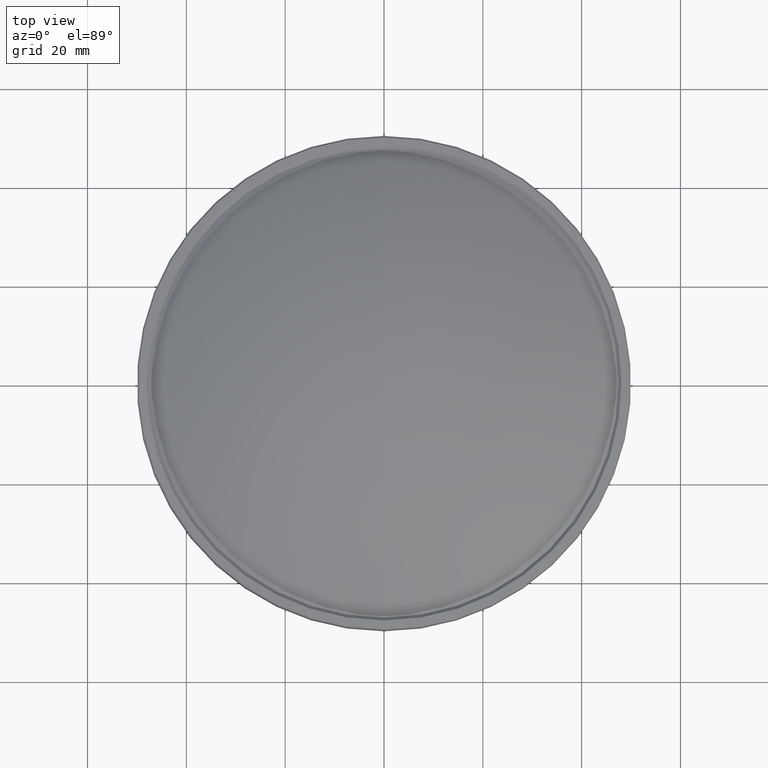
[diagram: clean part render]
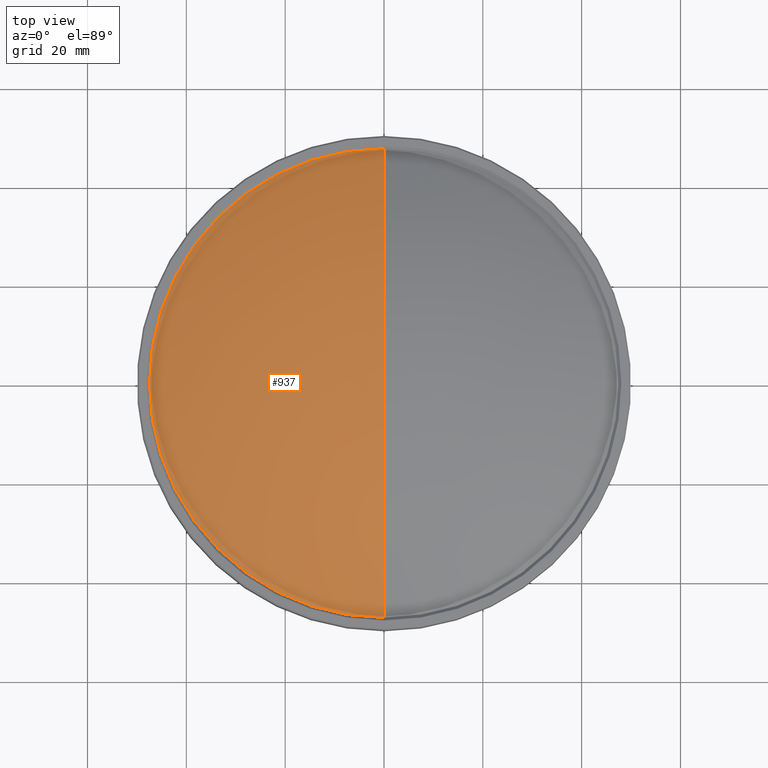
[diagram: same view with one face highlighted and labeled with its STEP entity id]
A machine part, top view. The second image highlights one B-rep face of the part: STEP entity #937.
In plain terms, the highlighted spherical surface has radius 103.006 mm.
Its self-contained STEP definition (entity closure, byte-faithful):
#71 = AXIS2_PLACEMENT_3D ( 'NONE', #343, #104, #721 ) ;
#90 = CARTESIAN_POINT ( 'NONE',  ( 0.000000000000000000, -47.44999999999999574, 41.88887531470000170 ) ) ;
#104 = DIRECTION ( 'NONE',  ( 0.000000000000000000, 0.000000000000000000, 1.000000000000000000 ) ) ;
#126 = SPHERICAL_SURFACE ( 'NONE', #934, 103.0057371891000031 ) ;
#202 = EDGE_LOOP ( 'NONE', ( #757, #554 ) ) ;
#209 = DIRECTION ( 'NONE',  ( 0.000000000000000000, -0.4606539528269920081, 0.8875798193654852453 ) ) ;
#242 = EDGE_CURVE ( 'NONE', #336, #657, #611, .T. ) ;
#299 = CARTESIAN_POINT ( 'NONE',  ( 0.000000000000000000, 0.000000000000000000, -49.53693829316999597 ) ) ;
#336 = VERTEX_POINT ( 'NONE', #832 ) ;
#343 = CARTESIAN_POINT ( 'NONE',  ( 0.000000000000000000, 0.000000000000000000, 41.88887531470000170 ) ) ;
#404 = CARTESIAN_POINT ( 'NONE',  ( 0.000000000000000000, 0.000000000000000000, -49.53693829316999597 ) ) ;
#544 = AXIS2_PLACEMENT_3D ( 'NONE', #299, #1005, #209 ) ;
#554 = ORIENTED_EDGE ( 'NONE', *, *, #848, .T. ) ;
#611 = CIRCLE ( 'NONE', #71, 47.44999999999999574 ) ;
#641 = CIRCLE ( 'NONE', #544, 103.0057371890999747 ) ;
#657 = VERTEX_POINT ( 'NONE', #90 ) ;
#721 = DIRECTION ( 'NONE',  ( 0.000000000000000000, 1.000000000000000000, 0.000000000000000000 ) ) ;
#734 = DIRECTION ( 'NONE',  ( -1.000000000000000000, -0.000000000000000000, -0.000000000000000000 ) ) ;
#757 = ORIENTED_EDGE ( 'NONE', *, *, #242, .T. ) ;
#832 = CARTESIAN_POINT ( 'NONE',  ( 0.000000000000000000, 47.44999999999999574, 41.88887531470000170 ) ) ;
#848 = EDGE_CURVE ( 'NONE', #657, #336, #641, .T. ) ;
#934 = AXIS2_PLACEMENT_3D ( 'NONE', #404, #734, #952 ) ;
#937 = ADVANCED_FACE ( 'NONE', ( #943 ), #126, .T. ) ;
#943 = FACE_OUTER_BOUND ( 'NONE', #202, .T. ) ;
#952 = DIRECTION ( 'NONE',  ( 0.000000000000000000, -1.000000000000000000, 0.000000000000000000 ) ) ;
#1005 = DIRECTION ( 'NONE',  ( -1.000000000000000000, 0.000000000000000000, 0.000000000000000000 ) ) ;